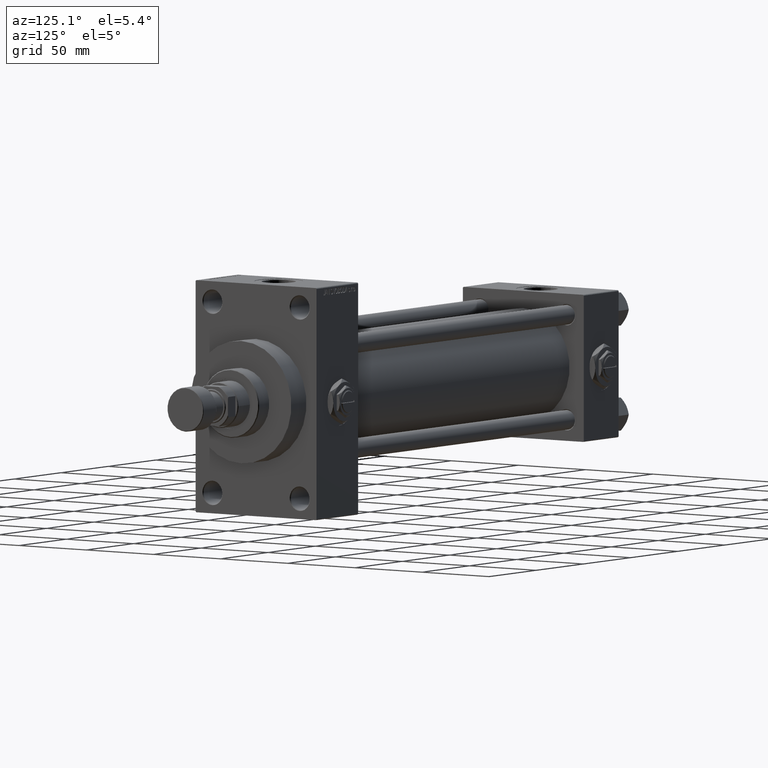
[diagram: clean part render]
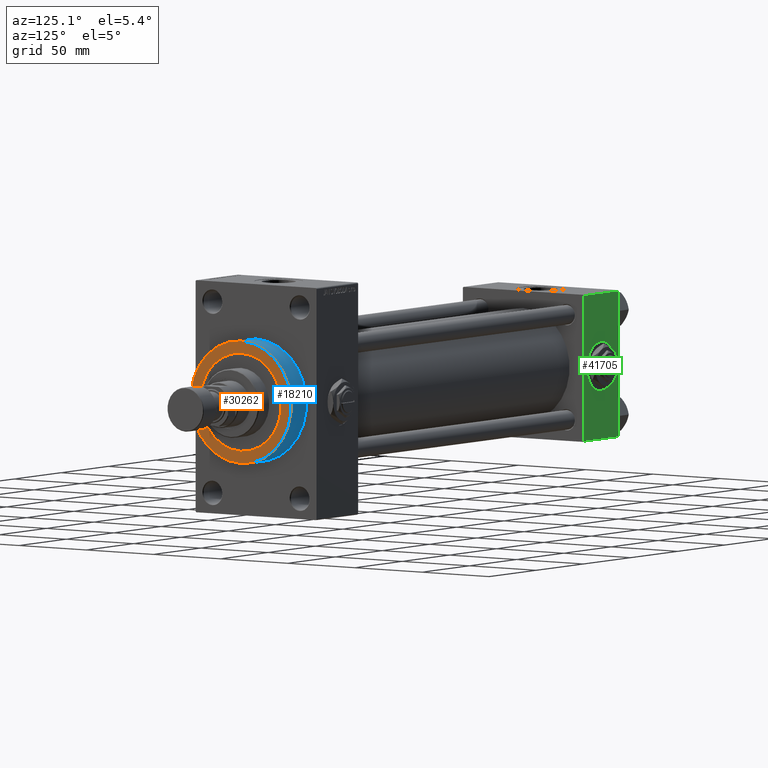
[diagram: same view with three faces highlighted in distinct colors, each labeled with its STEP entity id]
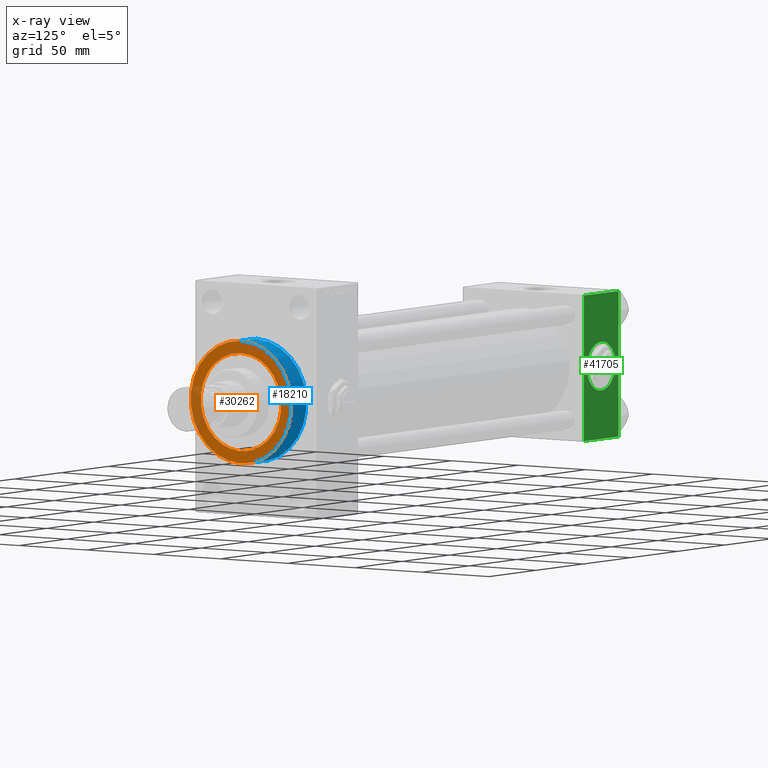
[diagram: x-ray of the same camera — body ghosted, the three highlighted faces saturated]
A machine part, auxiliary view with three faces highlighted in distinct colors.
The next image is the same camera in x-ray (body ghosted, the three faces saturated) — at least one of them is partly hidden behind the body in this view.
Their STEP definitions:

[orange] entity #30262 — the highlighted planar face has unit normal (1, 0, 0).
#133 = CARTESIAN_POINT ( 'NONE',  ( 335.9999999999999432, 0.000000000000000000, 0.000000000000000000 ) ) ;
#135 = VERTEX_POINT ( 'NONE', #28215 ) ;
#549 = AXIS2_PLACEMENT_3D ( 'NONE', #31181, #11786, #42492 ) ;
#5369 = PLANE ( 'NONE',  #10968 ) ;
#6311 = VERTEX_POINT ( 'NONE', #18139 ) ;
#9173 = VERTEX_POINT ( 'NONE', #43317 ) ;
#10654 = AXIS2_PLACEMENT_3D ( 'NONE', #31700, #43275, #27436 ) ;
#10837 = EDGE_CURVE ( 'NONE', #135, #39406, #42272, .T. ) ;
#10968 = AXIS2_PLACEMENT_3D ( 'NONE', #133, #15461, #28517 ) ;
#11786 = DIRECTION ( 'NONE',  ( 1.000000000000000000, 0.000000000000000000, 0.000000000000000000 ) ) ;
#11881 = CARTESIAN_POINT ( 'NONE',  ( 335.9999999999999432, 4.592425496802575156E-15, -37.50000000000000711 ) ) ;
#13133 = FACE_OUTER_BOUND ( 'NONE', #31014, .T. ) ;
#14681 = CIRCLE ( 'NONE', #10654, 30.00000000000000000 ) ;
#15461 = DIRECTION ( 'NONE',  ( 1.000000000000000000, 0.000000000000000000, 0.000000000000000000 ) ) ;
#16160 = DIRECTION ( 'NONE',  ( 1.000000000000000000, 0.000000000000000000, 0.000000000000000000 ) ) ;
#16823 = CIRCLE ( 'NONE', #44959, 30.00000000000000000 ) ;
#18139 = CARTESIAN_POINT ( 'NONE',  ( 335.9999999999999432, 3.673940397442059178E-15, 30.00000000000000000 ) ) ;
#18228 = ORIENTED_EDGE ( 'NONE', *, *, #10837, .T. ) ;
#18479 = CARTESIAN_POINT ( 'NONE',  ( 335.9999999999999432, 0.000000000000000000, 0.000000000000000000 ) ) ;
#19251 = FACE_BOUND ( 'NONE', #26249, .T. ) ;
#23014 = DIRECTION ( 'NONE',  ( 1.000000000000000000, 0.000000000000000000, 0.000000000000000000 ) ) ;
#26249 = EDGE_LOOP ( 'NONE', ( #27748, #35541 ) ) ;
#26307 = DIRECTION ( 'NONE',  ( 0.000000000000000000, 0.000000000000000000, -1.000000000000000000 ) ) ;
#26596 = EDGE_CURVE ( 'NONE', #39406, #135, #32695, .T. ) ;
#27034 = AXIS2_PLACEMENT_3D ( 'NONE', #18479, #23014, #26307 ) ;
#27436 = DIRECTION ( 'NONE',  ( 0.000000000000000000, 0.000000000000000000, -1.000000000000000000 ) ) ;
#27748 = ORIENTED_EDGE ( 'NONE', *, *, #36591, .F. ) ;
#28215 = CARTESIAN_POINT ( 'NONE',  ( 335.9999999999999432, 0.000000000000000000, 37.50000000000000711 ) ) ;
#28517 = DIRECTION ( 'NONE',  ( 0.000000000000000000, 0.000000000000000000, -1.000000000000000000 ) ) ;
#30262 = ADVANCED_FACE ( 'NONE', ( #19251, #13133 ), #5369, .T. ) ;
#31014 = EDGE_LOOP ( 'NONE', ( #18228, #33591 ) ) ;
#31181 = CARTESIAN_POINT ( 'NONE',  ( 335.9999999999999432, 0.000000000000000000, 0.000000000000000000 ) ) ;
#31288 = CARTESIAN_POINT ( 'NONE',  ( 335.9999999999999432, 0.000000000000000000, 0.000000000000000000 ) ) ;
#31700 = CARTESIAN_POINT ( 'NONE',  ( 335.9999999999999432, 0.000000000000000000, 0.000000000000000000 ) ) ;
#32695 = CIRCLE ( 'NONE', #549, 37.50000000000000711 ) ;
#33591 = ORIENTED_EDGE ( 'NONE', *, *, #26596, .T. ) ;
#35541 = ORIENTED_EDGE ( 'NONE', *, *, #39751, .F. ) ;
#36591 = EDGE_CURVE ( 'NONE', #9173, #6311, #16823, .T. ) ;
#39080 = DIRECTION ( 'NONE',  ( 0.000000000000000000, 0.000000000000000000, -1.000000000000000000 ) ) ;
#39406 = VERTEX_POINT ( 'NONE', #11881 ) ;
#39751 = EDGE_CURVE ( 'NONE', #6311, #9173, #14681, .T. ) ;
#42272 = CIRCLE ( 'NONE', #27034, 37.50000000000000711 ) ;
#42492 = DIRECTION ( 'NONE',  ( 0.000000000000000000, 0.000000000000000000, -1.000000000000000000 ) ) ;
#43275 = DIRECTION ( 'NONE',  ( 1.000000000000000000, 0.000000000000000000, 0.000000000000000000 ) ) ;
#43317 = CARTESIAN_POINT ( 'NONE',  ( 335.9999999999999432, 0.000000000000000000, -30.00000000000000000 ) ) ;
#44959 = AXIS2_PLACEMENT_3D ( 'NONE', #31288, #16160, #39080 ) ;

[blue] entity #18210 — the highlighted cylindrical surface (partial cylindrical patch) has radius 37.5 mm, axis along (-1, -0, -0).
#135 = VERTEX_POINT ( 'NONE', #28215 ) ;
#549 = AXIS2_PLACEMENT_3D ( 'NONE', #31181, #11786, #42492 ) ;
#1029 = CARTESIAN_POINT ( 'NONE',  ( 335.9999999999999432, 4.592425496802575156E-15, -37.50000000000000711 ) ) ;
#1907 = CARTESIAN_POINT ( 'NONE',  ( 319.9999999999999432, 0.000000000000000000, 0.000000000000000000 ) ) ;
#2528 = CARTESIAN_POINT ( 'NONE',  ( 319.9999999999999432, 0.000000000000000000, 37.50000000000000711 ) ) ;
#3927 = CARTESIAN_POINT ( 'NONE',  ( 335.9999999999999432, 0.000000000000000000, 37.50000000000000711 ) ) ;
#4424 = LINE ( 'NONE', #3927, #22225 ) ;
#6185 = CIRCLE ( 'NONE', #47170, 37.50000000000000711 ) ;
#8586 = EDGE_LOOP ( 'NONE', ( #31525, #21307, #17883, #39888 ) ) ;
#8944 = DIRECTION ( 'NONE',  ( 1.000000000000000000, 0.000000000000000000, 0.000000000000000000 ) ) ;
#11786 = DIRECTION ( 'NONE',  ( 1.000000000000000000, 0.000000000000000000, 0.000000000000000000 ) ) ;
#11881 = CARTESIAN_POINT ( 'NONE',  ( 335.9999999999999432, 4.592425496802575156E-15, -37.50000000000000711 ) ) ;
#12014 = VERTEX_POINT ( 'NONE', #2528 ) ;
#14679 = DIRECTION ( 'NONE',  ( -1.000000000000000000, -0.000000000000000000, -0.000000000000000000 ) ) ;
#16913 = DIRECTION ( 'NONE',  ( -1.000000000000000000, -0.000000000000000000, -0.000000000000000000 ) ) ;
#17883 = ORIENTED_EDGE ( 'NONE', *, *, #27231, .T. ) ;
#18210 = ADVANCED_FACE ( 'NONE', ( #27047 ), #31553, .T. ) ;
#20139 = LINE ( 'NONE', #1029, #28069 ) ;
#21307 = ORIENTED_EDGE ( 'NONE', *, *, #34641, .T. ) ;
#22225 = VECTOR ( 'NONE', #16913, 1000.000000000000000 ) ;
#26596 = EDGE_CURVE ( 'NONE', #39406, #135, #32695, .T. ) ;
#27047 = FACE_OUTER_BOUND ( 'NONE', #8586, .T. ) ;
#27231 = EDGE_CURVE ( 'NONE', #47189, #12014, #6185, .T. ) ;
#28069 = VECTOR ( 'NONE', #14679, 1000.000000000000000 ) ;
#28215 = CARTESIAN_POINT ( 'NONE',  ( 335.9999999999999432, 0.000000000000000000, 37.50000000000000711 ) ) ;
#30244 = EDGE_CURVE ( 'NONE', #135, #12014, #4424, .T. ) ;
#31061 = DIRECTION ( 'NONE',  ( -1.000000000000000000, -0.000000000000000000, -0.000000000000000000 ) ) ;
#31181 = CARTESIAN_POINT ( 'NONE',  ( 335.9999999999999432, 0.000000000000000000, 0.000000000000000000 ) ) ;
#31525 = ORIENTED_EDGE ( 'NONE', *, *, #26596, .F. ) ;
#31553 = CYLINDRICAL_SURFACE ( 'NONE', #34756, 37.50000000000000711 ) ;
#32356 = DIRECTION ( 'NONE',  ( 0.000000000000000000, 0.000000000000000000, -1.000000000000000000 ) ) ;
#32695 = CIRCLE ( 'NONE', #549, 37.50000000000000711 ) ;
#33061 = CARTESIAN_POINT ( 'NONE',  ( 319.9999999999999432, 4.592425496802575156E-15, -37.50000000000000711 ) ) ;
#34641 = EDGE_CURVE ( 'NONE', #39406, #47189, #20139, .T. ) ;
#34756 = AXIS2_PLACEMENT_3D ( 'NONE', #34817, #31061, #46896 ) ;
#34817 = CARTESIAN_POINT ( 'NONE',  ( 335.9999999999999432, 0.000000000000000000, 0.000000000000000000 ) ) ;
#39406 = VERTEX_POINT ( 'NONE', #11881 ) ;
#39888 = ORIENTED_EDGE ( 'NONE', *, *, #30244, .F. ) ;
#42492 = DIRECTION ( 'NONE',  ( 0.000000000000000000, 0.000000000000000000, -1.000000000000000000 ) ) ;
#46896 = DIRECTION ( 'NONE',  ( 0.000000000000000000, 0.000000000000000000, 1.000000000000000000 ) ) ;
#47170 = AXIS2_PLACEMENT_3D ( 'NONE', #1907, #8944, #32356 ) ;
#47189 = VERTEX_POINT ( 'NONE', #33061 ) ;

[green] entity #41705 — the highlighted planar face has unit normal (0, 1, 0).
#251 = CARTESIAN_POINT ( 'NONE',  ( 18.50000000000000355, 44.99999999999998579, -15.00000000000000178 ) ) ;
#2734 = VERTEX_POINT ( 'NONE', #3353 ) ;
#3353 = CARTESIAN_POINT ( 'NONE',  ( 18.50000000000000000, 44.99999999999998579, 15.00000000000000178 ) ) ;
#4579 = VECTOR ( 'NONE', #45720, 1000.000000000000000 ) ;
#6302 = EDGE_CURVE ( 'NONE', #38185, #36812, #48852, .T. ) ;
#6666 = EDGE_LOOP ( 'NONE', ( #18877, #15477 ) ) ;
#7424 = CARTESIAN_POINT ( 'NONE',  ( 18.50000000000000000, 44.99999999999998579, 0.000000000000000000 ) ) ;
#7850 = CIRCLE ( 'NONE', #36025, 15.00000000000000178 ) ;
#9546 = DIRECTION ( 'NONE',  ( 0.000000000000000000, 0.000000000000000000, 1.000000000000000000 ) ) ;
#10982 = DIRECTION ( 'NONE',  ( 0.000000000000000000, 0.000000000000000000, -1.000000000000000000 ) ) ;
#11440 = CARTESIAN_POINT ( 'NONE',  ( 0.000000000000000000, 44.99999999999998579, -44.49999999999995737 ) ) ;
#12346 = AXIS2_PLACEMENT_3D ( 'NONE', #23877, #38713, #16304 ) ;
#14026 = VECTOR ( 'NONE', #30631, 1000.000000000000000 ) ;
#14119 = CARTESIAN_POINT ( 'NONE',  ( 37.00000000000000000, 44.99999999999998579, 44.50000000000001421 ) ) ;
#15012 = CARTESIAN_POINT ( 'NONE',  ( 37.00000000000000000, 44.99999999999998579, -44.49999999999998579 ) ) ;
#15261 = CARTESIAN_POINT ( 'NONE',  ( 37.00000000000000000, 44.99999999999998579, 45.00000000000001421 ) ) ;
#15477 = ORIENTED_EDGE ( 'NONE', *, *, #33054, .F. ) ;
#16145 = ORIENTED_EDGE ( 'NONE', *, *, #22327, .T. ) ;
#16304 = DIRECTION ( 'NONE',  ( 0.000000000000000000, -0.000000000000000000, 1.000000000000000000 ) ) ;
#16605 = VERTEX_POINT ( 'NONE', #11440 ) ;
#17341 = DIRECTION ( 'NONE',  ( 0.000000000000000000, 1.000000000000000000, 0.000000000000000000 ) ) ;
#18877 = ORIENTED_EDGE ( 'NONE', *, *, #36330, .F. ) ;
#19510 = LINE ( 'NONE', #15012, #4579 ) ;
#19983 = EDGE_LOOP ( 'NONE', ( #16145, #39320, #21716, #31705 ) ) ;
#21716 = ORIENTED_EDGE ( 'NONE', *, *, #25938, .F. ) ;
#22047 = VECTOR ( 'NONE', #40560, 1000.000000000000000 ) ;
#22065 = LINE ( 'NONE', #44471, #34264 ) ;
#22327 = EDGE_CURVE ( 'NONE', #36812, #25273, #49748, .T. ) ;
#23610 = FACE_BOUND ( 'NONE', #6666, .T. ) ;
#23877 = CARTESIAN_POINT ( 'NONE',  ( 37.00000000000000000, 44.99999999999998579, 45.00000000000001421 ) ) ;
#24663 = CARTESIAN_POINT ( 'NONE',  ( 18.50000000000000000, 44.99999999999998579, 0.000000000000000000 ) ) ;
#25273 = VERTEX_POINT ( 'NONE', #35616 ) ;
#25938 = EDGE_CURVE ( 'NONE', #38185, #16605, #22065, .T. ) ;
#27086 = EDGE_CURVE ( 'NONE', #25273, #16605, #19510, .T. ) ;
#30631 = DIRECTION ( 'NONE',  ( 0.000000000000000000, 0.000000000000000000, -1.000000000000000000 ) ) ;
#31183 = FACE_OUTER_BOUND ( 'NONE', #19983, .T. ) ;
#31425 = PLANE ( 'NONE',  #12346 ) ;
#31705 = ORIENTED_EDGE ( 'NONE', *, *, #6302, .T. ) ;
#32114 = AXIS2_PLACEMENT_3D ( 'NONE', #7424, #37394, #41412 ) ;
#33054 = EDGE_CURVE ( 'NONE', #36030, #2734, #7850, .T. ) ;
#33350 = CARTESIAN_POINT ( 'NONE',  ( 0.000000000000000000, 44.99999999999998579, 44.50000000000001421 ) ) ;
#34264 = VECTOR ( 'NONE', #10982, 1000.000000000000000 ) ;
#35616 = CARTESIAN_POINT ( 'NONE',  ( 37.00000000000000000, 44.99999999999998579, -44.49999999999995737 ) ) ;
#36025 = AXIS2_PLACEMENT_3D ( 'NONE', #24663, #17341, #9546 ) ;
#36030 = VERTEX_POINT ( 'NONE', #251 ) ;
#36330 = EDGE_CURVE ( 'NONE', #2734, #36030, #47383, .T. ) ;
#36812 = VERTEX_POINT ( 'NONE', #37026 ) ;
#37026 = CARTESIAN_POINT ( 'NONE',  ( 37.00000000000000000, 44.99999999999998579, 44.50000000000001421 ) ) ;
#37394 = DIRECTION ( 'NONE',  ( 0.000000000000000000, 1.000000000000000000, 0.000000000000000000 ) ) ;
#38185 = VERTEX_POINT ( 'NONE', #33350 ) ;
#38713 = DIRECTION ( 'NONE',  ( -0.000000000000000000, 1.000000000000000000, 0.000000000000000000 ) ) ;
#39320 = ORIENTED_EDGE ( 'NONE', *, *, #27086, .T. ) ;
#40560 = DIRECTION ( 'NONE',  ( 1.000000000000000000, 0.000000000000000000, 0.000000000000000000 ) ) ;
#41412 = DIRECTION ( 'NONE',  ( 0.000000000000000000, 0.000000000000000000, 1.000000000000000000 ) ) ;
#41705 = ADVANCED_FACE ( 'NONE', ( #23610, #31183 ), #31425, .T. ) ;
#44471 = CARTESIAN_POINT ( 'NONE',  ( 0.000000000000000000, 44.99999999999998579, 45.00000000000001421 ) ) ;
#45720 = DIRECTION ( 'NONE',  ( -1.000000000000000000, 0.000000000000000000, 0.000000000000000000 ) ) ;
#47383 = CIRCLE ( 'NONE', #32114, 15.00000000000000178 ) ;
#48852 = LINE ( 'NONE', #14119, #22047 ) ;
#49748 = LINE ( 'NONE', #15261, #14026 ) ;